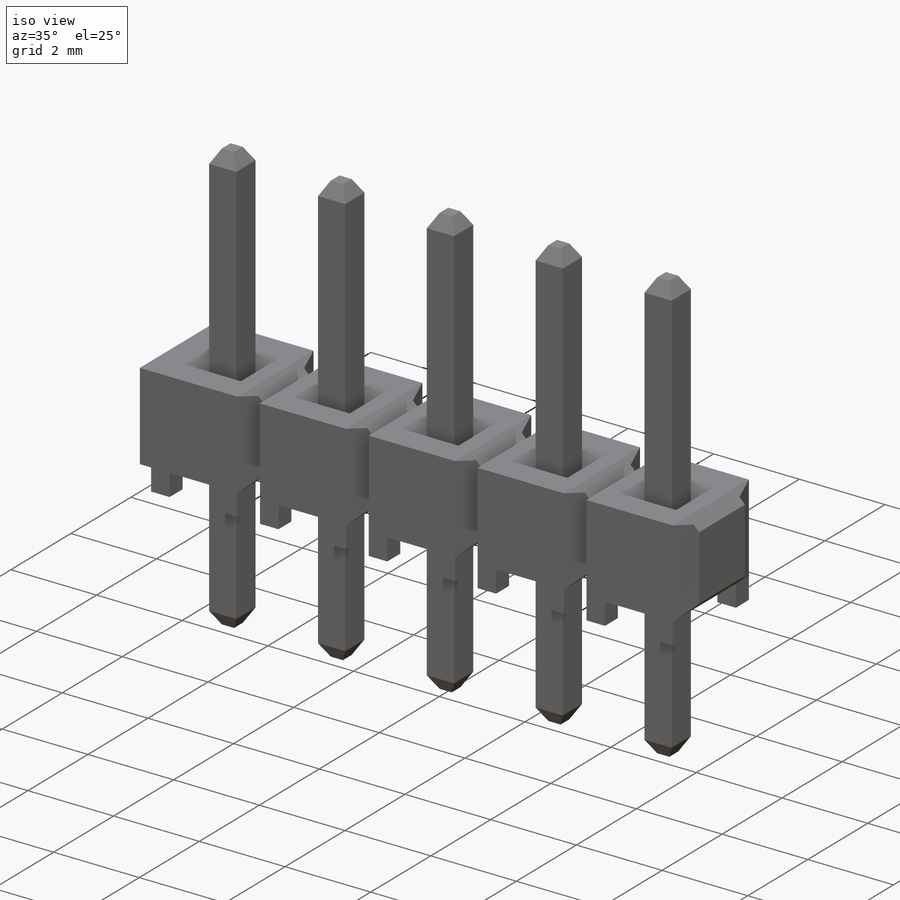
[diagram: iso view]
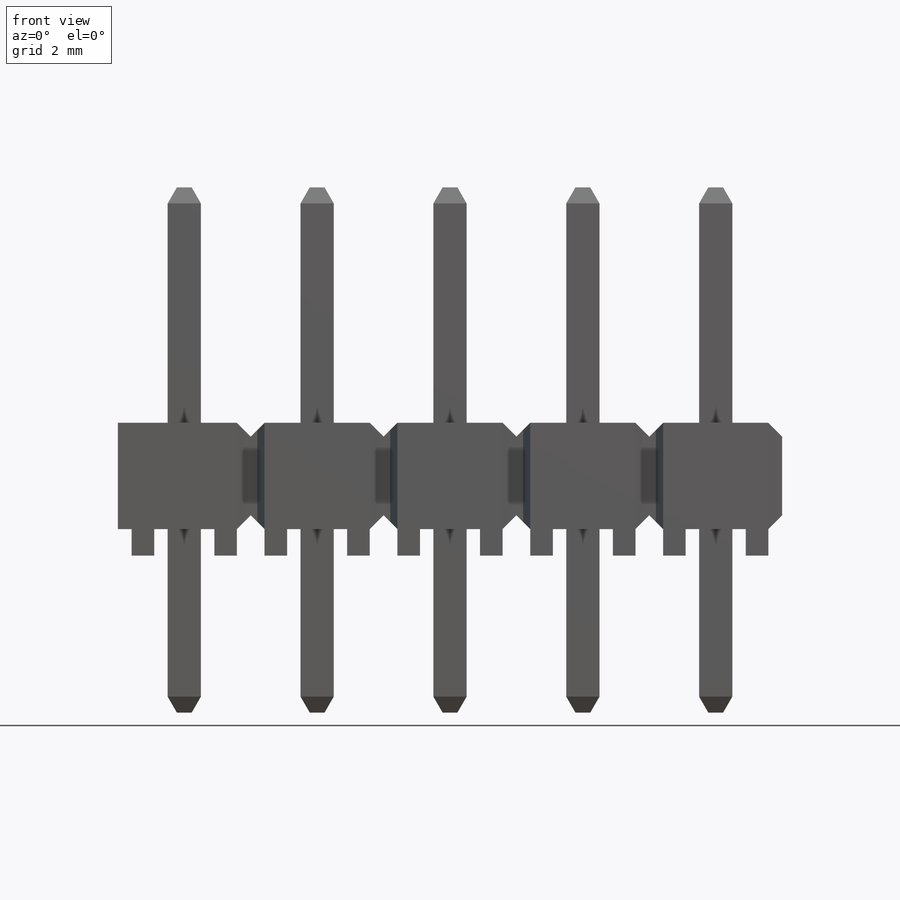
[diagram: front view]
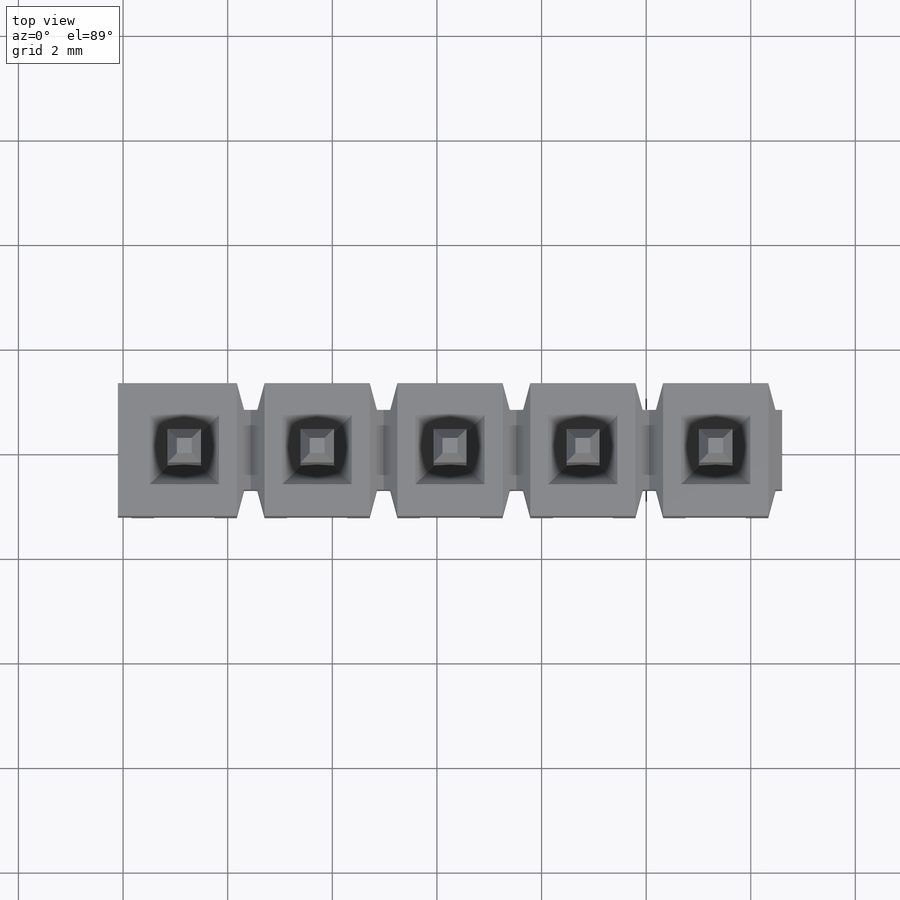
[diagram: top view]
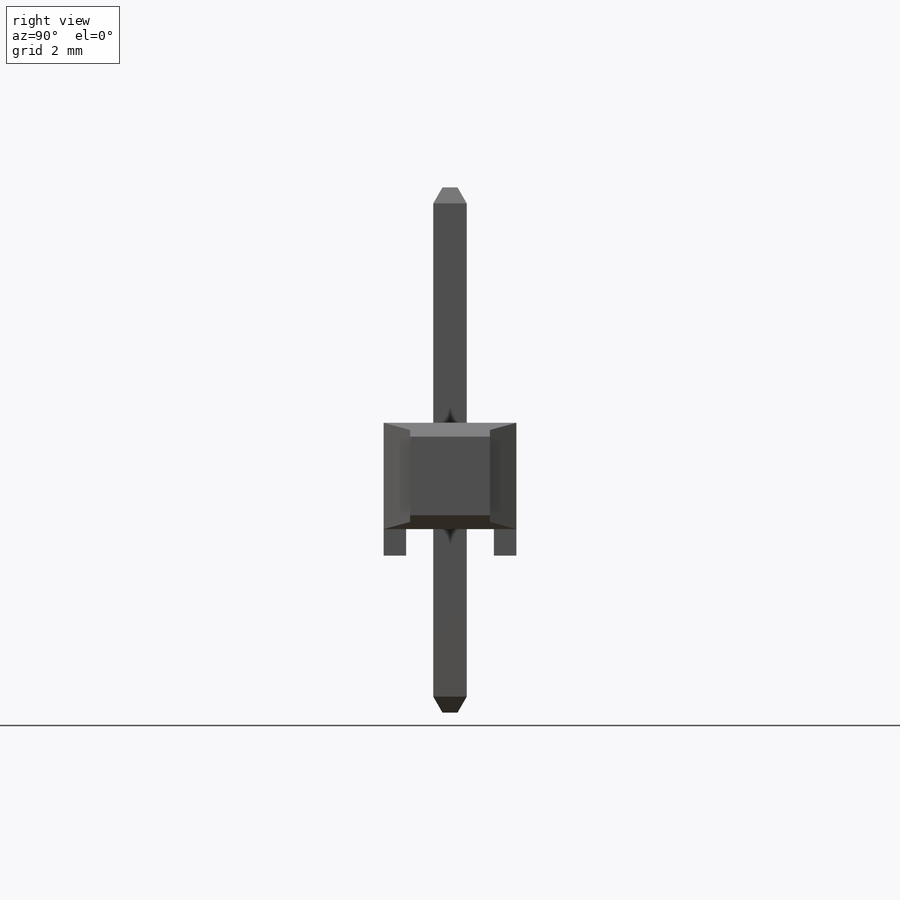
[diagram: right view]
SOLIDWORKS PART (.sldprt)
format: sldprt  version: not decoded by parser v0  size: 1,181,696 bytes
history: native  units: mm
features: sketch x12, plane x5, cut_extrude x5, pattern_linear x4, extrude x2, chamfer x2, material x1 + 1 further entry (+15 scaffold rows collapsed)
feature tree (47):
  scaffold x15  (default folders/planes/origin — collapsed)
  material  "Material <not specified>"
  "Design Table"
  sketch  "Sketch3"  dims[c1.D1=2.54mm c1.D2=~0.26416mm c1.D3=0.4318mm c1.D4=0.508mm c1.D5=2.54mm c1.D6=1.27mm c1.SO=7.62mm c1.D8=0.508mm c1.D9=2.54mm c1.D10=~0.245002mm c2.D1=1.27mm]
  extrude  "Main Body"  Depth=2.54mm R=2.54mm
  plane  "Plane3"  Offset=1.27mm
  sketch  "Sketch4"  dims[D1=0.4318mm D2=1.143mm D3=0.254mm]
  cut_extrude  "Base Cut"  Depth=2.54mm
  pattern_linear  "Main Body Pattern"  Count1=16 Count2=1 Spacing1=2.54mm Spacing2=50mm
  sketch  "Sketch19"  dims[D1=0.6096mm D2=0.9652mm D3=1.27mm]
  cut_extrude  "Pin Cut"  [1 undecoded]
  chamfer  "Pin Chamfer"  Distance=0.3556mm
  pattern_linear  "Pin Pattern"  Count1=16 Count2=1 Spacing1=2.54mm Spacing2=2.54mm
  sketch  "Sketch5"  dims[c1.D1=0.508mm c1.D2=0.254mm c1.D3=~0.521261mm c2.D3=~25.903497deg c3.D3=2.54mm c3.D4=~0.52832mm c4.D3=~0.52832mm c5.D3=~105.109575deg c5.R=2.54mm c6.D3=0.254mm c6.D5=0.508mm c6.D6=~0.52832mm]
  cut_extrude  "Slot Cut-1"  [1 undecoded]
  sketch  "Sketch7"  dims[D1=~0.26416mm D2=~0.26416mm D3=~0.26416mm D4=2.54mm D5=~0.52832mm]
  cut_extrude  "Slot Cut-2"  Depth=2.54mm
  pattern_linear  "Slot Pattern"  Count1=15 Count2=1 Spacing1=2.54mm Spacing2=2.54mm
  sketch  "Sketch9"  dims[c1.D1=0.635mm c1.D2=2.794mm c1.D3=10.922mm c1.D4=~0.08763mm c1.D5=0.3048mm c2.D1=0.64mm c2.D2=2.286mm c2.OAL=10.922mm c2.C=6.096mm c3.D2=1.27mm c3.SC=4.5mm c3.D4=2.286mm c3.SA=5.08mm c4.SA=3.0mm]
  extrude  "Straight Lead "  Depth=0.635mm
  chamfer  "Lead Chamfer"  Distance=0.17526mm
  pattern_linear  "Straight L Pattern"  Count1=16 Count2=1 Spacing1=2.54mm Spacing2=2.54mm Double=2.54mm Q=2.54mm
  plane  "Crimp Plane"  Offset=19.05mm
  plane  "Crimp Plane-S"  Offset=21.59mm
  sketch  "Sketch15"  dims[c1.D1=1.016mm c1.D2=0.2032mm c1.D3=0.508mm c1.D4=0.9525mm c2.D1=0.9525mm c2.D4=1.016mm c2.D5=~1.776778mm]
  sketch  "Sketch16"  dims[c1.D1=0.2032mm c1.D2=0.1524mm c1.D3=0.635mm c2.D1=1.016mm c2.D3=0.2032mm c2.D4=1.5875mm c2.D5=0.4826mm c3.D1=~0.376957mm c3.D4=~0.449539mm c4.D1=~14.670441mm c4.D5=1.5875mm c5.D1=1.5875mm c5.D4=0.4826mm c5.D5=1.016mm]
  sketch  "Sketch17"  dims[c1.D1=0.508mm c1.D2=0.2032mm c1.D3=1.5875mm c1.D4=1.016mm c2.D3=0.254mm c2.D1=0.254mm c3.D3=1.5875mm c3.D4=1.016mm]
  sketch  "Sketch18"  dims[c1.D1=0.2032mm c1.D2=0.1524mm c1.D3=0.9525mm c1.D4=1.016mm c1.D5=0.4826mm c2.D3=0.9525mm c2.D4=1.016mm]
  plane  "-S Initial Plane"  Offset=1.27mm
  plane  "S-Straight Polarize"  Offset=0mm
  sketch  "SS-Polarize Sketch"  dims[D1=1.27mm D2=0.762mm D3=1.27mm D4=~0.00254mm D5=38.1mm D6=63.5mm]
  sketch  "Sketch20"
  cut_extrude  "Cut-Extrude1"  Depth=7.8486mm K=7.8486mm OAL=15.367mm C=2.54mm A=7.874mm SA=2.286mm Double=2.54mm
decode coverage: 22 of 25 modeling features carry decoded parameters; 1 rows unclassified (native names shown)
note: ~ marks probable driven/reference dimensions
note: 2 parameter values undecoded
note: suppression state not decoded; provenance and decode notes live in map.json
